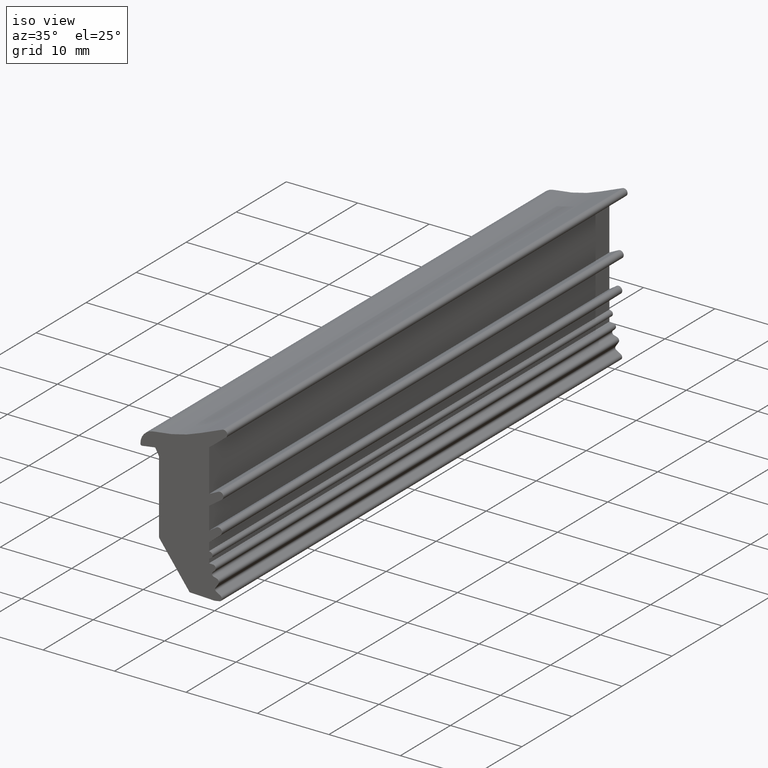
[diagram: clean part render]
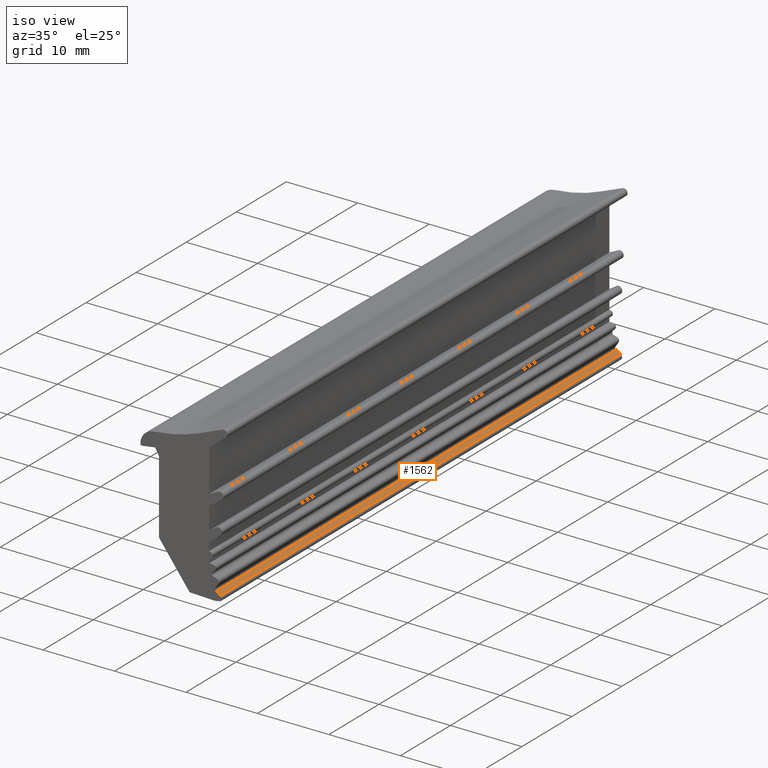
[diagram: same view with one face highlighted and labeled with its STEP entity id]
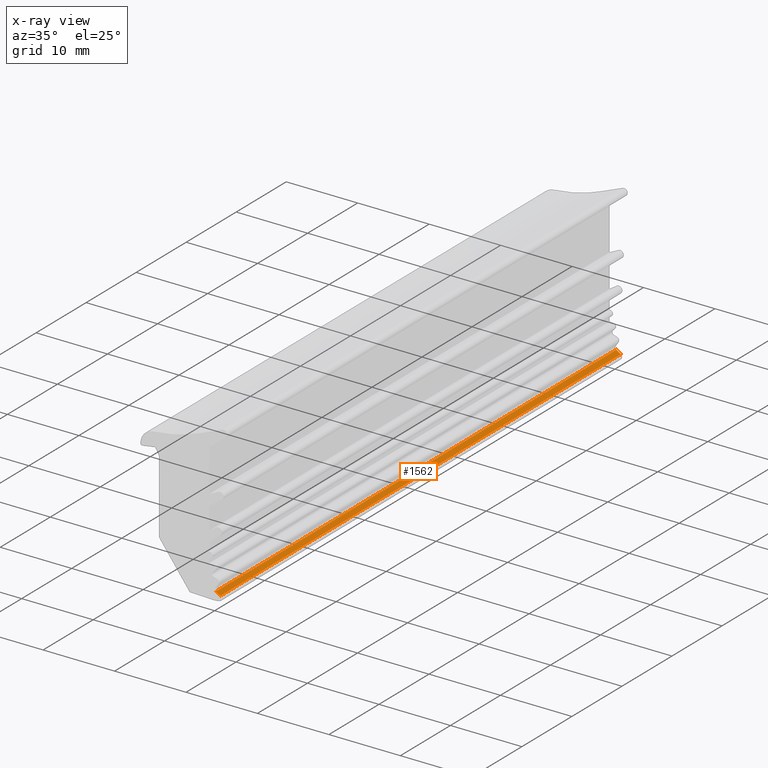
[diagram: x-ray of the same camera — body ghosted, the highlighted face saturated]
A machine part, iso view. The second image highlights one B-rep face of the part: STEP entity #1562.
The next image is the same camera in x-ray: the body ghosted, the highlighted face saturated — about 0% of this face is hidden behind the body in this view.
In plain terms, the highlighted planar face has unit normal (-0.5155, 0, -0.8569).
Its self-contained STEP definition (entity closure, byte-faithful):
#238 = EDGE_LOOP ( 'NONE', ( #363, #355, #354, #367 ) ) ;
#354 = ORIENTED_EDGE ( 'NONE', *, *, #1903, .F. ) ;
#355 = ORIENTED_EDGE ( 'NONE', *, *, #1943, .F. ) ;
#363 = ORIENTED_EDGE ( 'NONE', *, *, #2011, .F. ) ;
#367 = ORIENTED_EDGE ( 'NONE', *, *, #2048, .F. ) ;
#395 = LINE ( 'NONE', #475, #396 ) ;
#396 = VECTOR ( 'NONE', #474, 1000.000000000000000 ) ;
#474 = DIRECTION ( 'NONE',  ( -0.8568951763817062000, 0.0000000000000000000, 0.5154906950603130900 ) ) ;
#475 = CARTESIAN_POINT ( 'NONE',  ( 0.2031874133048279800, 0.0000000000000000000, 1.230195506834989900 ) ) ;
#477 = CARTESIAN_POINT ( 'NONE',  ( 0.8264968148927975800, 80.00000000000000000, 0.8552252589932785000 ) ) ;
#530 = DIRECTION ( 'NONE',  ( -0.0000000000000000000, -1.000000000000000000, -0.0000000000000000000 ) ) ;
#534 = CARTESIAN_POINT ( 'NONE',  ( 0.2031874133048279800, 80.00000000000000000, 1.230195506834989900 ) ) ;
#659 = DIRECTION ( 'NONE',  ( 0.0000000000000000000, 1.000000000000000000, 0.0000000000000000000 ) ) ;
#669 = CARTESIAN_POINT ( 'NONE',  ( 0.2031874133048315600, 80.00000000000000000, 1.230195506834987700 ) ) ;
#831 = DIRECTION ( 'NONE',  ( 0.8568951763817062000, -0.0000000000000000000, -0.5154906950603130900 ) ) ;
#1043 = VERTEX_POINT ( 'NONE', #1090 ) ;
#1090 = CARTESIAN_POINT ( 'NONE',  ( 0.2031874133044407600, 0.0000000000000000000, 1.230195506835223100 ) ) ;
#1109 = CARTESIAN_POINT ( 'NONE',  ( 0.2031874133044407600, 80.00000000000000000, 1.230195506835223100 ) ) ;
#1143 = VERTEX_POINT ( 'NONE', #1207 ) ;
#1153 = VERTEX_POINT ( 'NONE', #1199 ) ;
#1174 = VERTEX_POINT ( 'NONE', #1109 ) ;
#1199 = CARTESIAN_POINT ( 'NONE',  ( 0.8264968148928887300, 80.00000000000000000, 0.8552252589932266600 ) ) ;
#1207 = CARTESIAN_POINT ( 'NONE',  ( 0.8264968148928887300, 0.0000000000000000000, 0.8552252589932266600 ) ) ;
#1285 = DIRECTION ( 'NONE',  ( -0.8568951763817062000, 0.0000000000000000000, 0.5154906950603130900 ) ) ;
#1286 = DIRECTION ( 'NONE',  ( -0.5154906950603130900, 0.0000000000000000000, -0.8568951763817062000 ) ) ;
#1295 = PLANE ( 'NONE',  #1857 ) ;
#1296 = CARTESIAN_POINT ( 'NONE',  ( 0.2031874133048279800, 80.00000000000000000, 1.230195506834989900 ) ) ;
#1356 = LINE ( 'NONE', #477, #1384 ) ;
#1384 = VECTOR ( 'NONE', #530, 1000.000000000000000 ) ;
#1462 = VECTOR ( 'NONE', #831, 1000.000000000000000 ) ;
#1463 = LINE ( 'NONE', #534, #1462 ) ;
#1509 = LINE ( 'NONE', #669, #1513 ) ;
#1513 = VECTOR ( 'NONE', #659, 1000.000000000000000 ) ;
#1562 = ADVANCED_FACE ( 'NONE', ( #1832 ), #1295, .F. ) ;
#1832 = FACE_OUTER_BOUND ( 'NONE', #238, .T. ) ;
#1857 = AXIS2_PLACEMENT_3D ( 'NONE', #1296, #1286, #1285 ) ;
#1903 = EDGE_CURVE ( 'NONE', #1043, #1174, #1509, .T. ) ;
#1943 = EDGE_CURVE ( 'NONE', #1174, #1153, #1463, .T. ) ;
#2011 = EDGE_CURVE ( 'NONE', #1153, #1143, #1356, .T. ) ;
#2048 = EDGE_CURVE ( 'NONE', #1143, #1043, #395, .T. ) ;